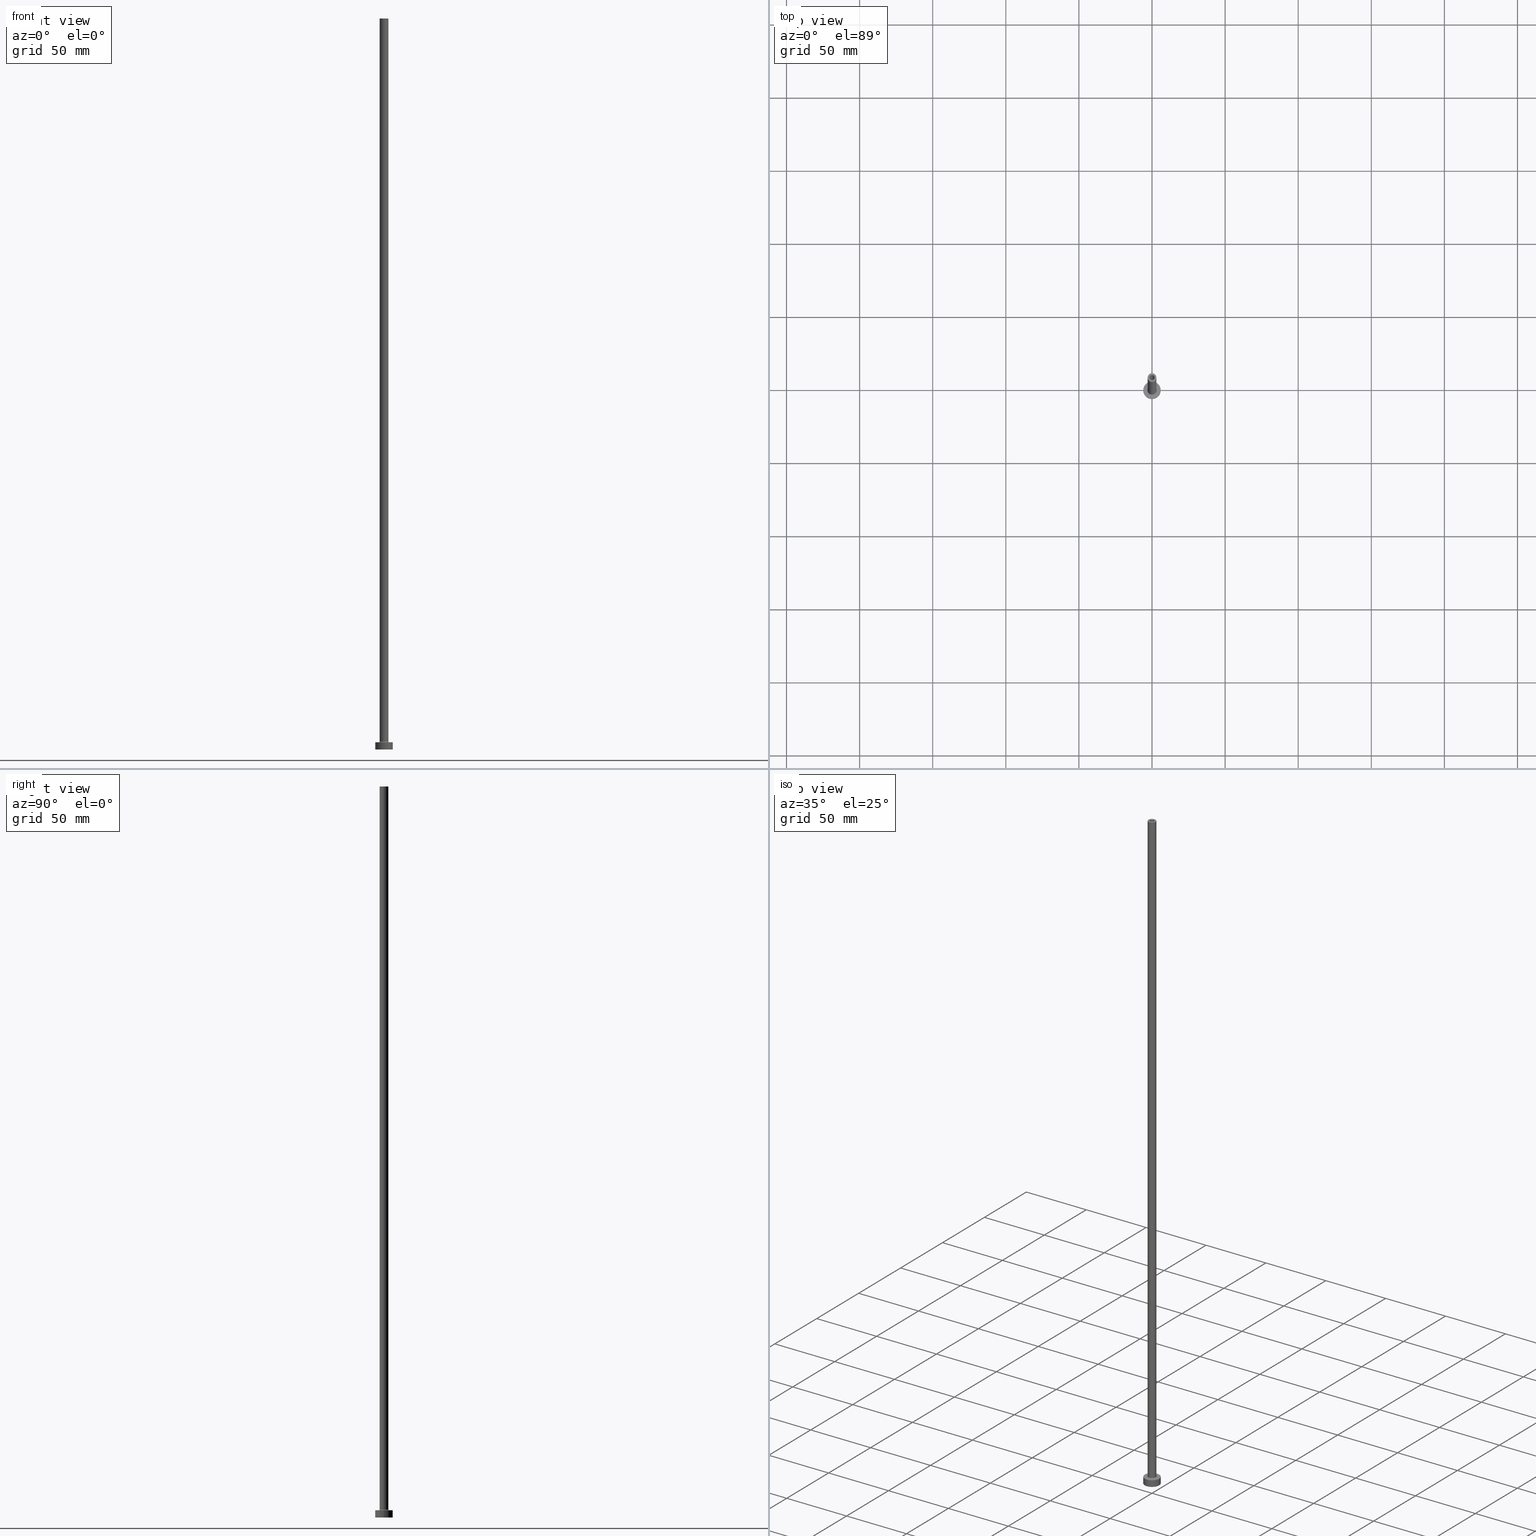
[diagram: canonical four-view strip — front | top / right | iso, engineering-drawing reading convention]
A machine part, canonical four-view strip (front | top / right | iso — engineering-drawing reading convention). The complete STEP part file that produces these views, byte-faithful:
ISO-10303-21;
HEADER;
FILE_DESCRIPTION (( 'STEP AP203' ),
    '1' );
FILE_NAME ('1b10.STEP',
    '2023-02-13T17:49:00',
    ( '' ),
    ( '' ),
    'SwSTEP 2.0',
    'SolidWorks 2019',
    '' );
FILE_SCHEMA (( 'CONFIG_CONTROL_DESIGN' ));
ENDSEC;

DATA;
#1 = PRODUCT_RELATED_PRODUCT_CATEGORY ( 'detail', '', ( #79 ) ) ;
#2 = AXIS2_PLACEMENT_3D ( 'NONE', #311, #175, #61 ) ;
#3 = CC_DESIGN_APPROVAL ( #405, ( #194 ) ) ;
#4 = APPROVAL_DATE_TIME ( #215, #405 ) ;
#5 = DIRECTION ( 'NONE',  ( -0.000000000000000000, -0.000000000000000000, -1.000000000000000000 ) ) ;
#6 = FACE_OUTER_BOUND ( 'NONE', #418, .T. ) ;
#7 = APPROVAL_STATUS ( 'not_yet_approved' ) ;
#8 = ORIENTED_EDGE ( 'NONE', *, *, #354, .T. ) ;
#9 = ADVANCED_FACE ( 'NONE', ( #143 ), #281, .F. ) ;
#10 = FACE_OUTER_BOUND ( 'NONE', #267, .T. ) ;
#11 = AXIS2_PLACEMENT_3D ( 'NONE', #453, #322, #106 ) ;
#12 = CARTESIAN_POINT ( 'NONE',  ( 0.000000000000000000, 0.000000000000000000, 455.0000000000000000 ) ) ;
#13 = EDGE_LOOP ( 'NONE', ( #113, #442, #201, #77 ) ) ;
#14 = EDGE_CURVE ( 'NONE', #119, #371, #182, .T. ) ;
#15 = ORIENTED_EDGE ( 'NONE', *, *, #224, .T. ) ;
#16 = VERTEX_POINT ( 'NONE', #135 ) ;
#17 = DIRECTION ( 'NONE',  ( 1.224646799147353207E-16, 1.000000000000000000, -0.000000000000000000 ) ) ;
#18 = SHAPE_DEFINITION_REPRESENTATION ( #289, #438 ) ;
#19 = CARTESIAN_POINT ( 'NONE',  ( 0.000000000000000000, 0.000000000000000000, 5.000000000000000000 ) ) ;
#20 =( NAMED_UNIT ( * ) SI_UNIT ( $, .STERADIAN. ) SOLID_ANGLE_UNIT ( ) );
#21 = AXIS2_PLACEMENT_3D ( 'NONE', #252, #447, #449 ) ;
#22 = AXIS2_PLACEMENT_3D ( 'NONE', #385, #41, #297 ) ;
#23 = DIRECTION ( 'NONE',  ( 0.000000000000000000, 0.000000000000000000, 1.000000000000000000 ) ) ;
#24 = CARTESIAN_POINT ( 'NONE',  ( -6.000000000000000888, 0.000000000000000000, 5.000000000000000000 ) ) ;
#25 = DIRECTION ( 'NONE',  ( -0.000000000000000000, -0.000000000000000000, -1.000000000000000000 ) ) ;
#26 = EDGE_CURVE ( 'NONE', #345, #16, #381, .T. ) ;
#27 = AXIS2_PLACEMENT_3D ( 'NONE', #12, #295, #161 ) ;
#28 = CC_DESIGN_SECURITY_CLASSIFICATION ( #403, ( #316 ) ) ;
#29 = ORIENTED_EDGE ( 'NONE', *, *, #179, .T. ) ;
#30 = CYLINDRICAL_SURFACE ( 'NONE', #81, 1.899999999999999911 ) ;
#31 = PERSON_AND_ORGANIZATION ( #237, #278 ) ;
#32 = ORIENTED_EDGE ( 'NONE', *, *, #253, .T. ) ;
#33 = FACE_BOUND ( 'NONE', #88, .T. ) ;
#34 = PERSON_AND_ORGANIZATION_ROLE ( 'creator' ) ;
#35 = DIRECTION ( 'NONE',  ( 1.000000000000000000, 0.000000000000000000, -0.000000000000000000 ) ) ;
#36 = DIRECTION ( 'NONE',  ( 0.000000000000000000, 0.000000000000000000, 1.000000000000000000 ) ) ;
#37 = UNCERTAINTY_MEASURE_WITH_UNIT (LENGTH_MEASURE( 1.000000000000000082E-05 ), #98, 'distance_accuracy_value', 'NONE');
#38 = CIRCLE ( 'NONE', #273, 1.899999999999999911 ) ;
#39 = FACE_BOUND ( 'NONE', #225, .T. ) ;
#40 = APPROVAL_DATE_TIME ( #156, #123 ) ;
#41 = DIRECTION ( 'NONE',  ( 0.000000000000000000, 0.000000000000000000, -1.000000000000000000 ) ) ;
#42 = DIRECTION ( 'NONE',  ( 0.000000000000000000, 0.000000000000000000, 1.000000000000000000 ) ) ;
#43 = PERSON_AND_ORGANIZATION_ROLE ( 'creator' ) ;
#44 = AXIS2_PLACEMENT_3D ( 'NONE', #220, #42, #337 ) ;
#45 = VERTEX_POINT ( 'NONE', #146 ) ;
#46 = ORIENTED_EDGE ( 'NONE', *, *, #409, .T. ) ;
#47 = CARTESIAN_POINT ( 'NONE',  ( -1.899999999999999911, 0.000000000000000000, 0.000000000000000000 ) ) ;
#48 = CC_DESIGN_DATE_AND_TIME_ASSIGNMENT ( #249, #399, ( #194 ) ) ;
#49 = ORIENTED_EDGE ( 'NONE', *, *, #162, .F. ) ;
#50 = CARTESIAN_POINT ( 'NONE',  ( 0.000000000000000000, 0.000000000000000000, 500.0000000000000000 ) ) ;
#51 = ORIENTED_EDGE ( 'NONE', *, *, #212, .T. ) ;
#52 = CIRCLE ( 'NONE', #44, 3.000000000000000444 ) ;
#53 = EDGE_LOOP ( 'NONE', ( #166, #374, #245, #183 ) ) ;
#54 = CARTESIAN_POINT ( 'NONE',  ( -1.750000000000000000, 0.000000000000000000, 500.0000000000000000 ) ) ;
#55 = DIRECTION ( 'NONE',  ( 0.000000000000000000, 0.000000000000000000, 1.000000000000000000 ) ) ;
#56 = ADVANCED_FACE ( 'NONE', ( #269 ), #287, .T. ) ;
#57 = LINE ( 'NONE', #264, #223 ) ;
#58 = DATE_AND_TIME ( #376, #73 ) ;
#59 = CARTESIAN_POINT ( 'NONE',  ( 1.750000000000000000, 2.143131898507867804E-16, 500.0000000000000000 ) ) ;
#60 = ORIENTED_EDGE ( 'NONE', *, *, #117, .F. ) ;
#61 = DIRECTION ( 'NONE',  ( 1.000000000000000000, 0.000000000000000000, 0.000000000000000000 ) ) ;
#62 = APPROVAL_DATE_TIME ( #58, #283 ) ;
#63 = AXIS2_PLACEMENT_3D ( 'NONE', #392, #36, #326 ) ;
#64 = DIRECTION ( 'NONE',  ( 1.000000000000000000, 0.000000000000000000, 0.000000000000000000 ) ) ;
#65 = ADVANCED_FACE ( 'NONE', ( #87, #221 ), #363, .F. ) ;
#66 = DIRECTION ( 'NONE',  ( 1.000000000000000000, 0.000000000000000000, 0.000000000000000000 ) ) ;
#67 = ORIENTED_EDGE ( 'NONE', *, *, #158, .F. ) ;
#68 = FACE_OUTER_BOUND ( 'NONE', #292, .T. ) ;
#69 = DIRECTION ( 'NONE',  ( 0.000000000000000000, 0.000000000000000000, -1.000000000000000000 ) ) ;
#70 = CARTESIAN_POINT ( 'NONE',  ( 0.000000000000000000, 0.000000000000000000, 500.0000000000000000 ) ) ;
#71 = VECTOR ( 'NONE', #5, 1000.000000000000000 ) ;
#72 = CYLINDRICAL_SURFACE ( 'NONE', #436, 6.000000000000000888 ) ;
#73 = LOCAL_TIME ( 18, 49, 0.000000000000000000, #236 ) ;
#74 = ADVANCED_FACE ( 'NONE', ( #33, #6 ), #426, .F. ) ;
#75 = ORIENTED_EDGE ( 'NONE', *, *, #26, .F. ) ;
#76 = PERSON_AND_ORGANIZATION ( #237, #278 ) ;
#77 = ORIENTED_EDGE ( 'NONE', *, *, #130, .F. ) ;
#78 = ORIENTED_EDGE ( 'NONE', *, *, #14, .F. ) ;
#79 = PRODUCT ( '1b10', '1b10', '', ( #412 ) ) ;
#80 = DIRECTION ( 'NONE',  ( 0.000000000000000000, 0.000000000000000000, -1.000000000000000000 ) ) ;
#81 = AXIS2_PLACEMENT_3D ( 'NONE', #461, #80, #397 ) ;
#82 = DIRECTION ( 'NONE',  ( 1.000000000000000000, 0.000000000000000000, 0.000000000000000000 ) ) ;
#83 = MANIFOLD_SOLID_BREP ( 'Odebrat vysunut�m4', #444 ) ;
#84 = ORIENTED_EDGE ( 'NONE', *, *, #231, .F. ) ;
#85 = APPLICATION_PROTOCOL_DEFINITION ( 'international standard', 'config_control_design', 1994, #439 ) ;
#86 = ADVANCED_FACE ( 'NONE', ( #10 ), #321, .F. ) ;
#87 = FACE_BOUND ( 'NONE', #312, .T. ) ;
#88 = EDGE_LOOP ( 'NONE', ( #8, #51 ) ) ;
#89 = AXIS2_PLACEMENT_3D ( 'NONE', #227, #370, #202 ) ;
#90 = AXIS2_PLACEMENT_3D ( 'NONE', #340, #230, #132 ) ;
#91 = ORIENTED_EDGE ( 'NONE', *, *, #169, .T. ) ;
#92 = ORIENTED_EDGE ( 'NONE', *, *, #259, .F. ) ;
#93 = EDGE_CURVE ( 'NONE', #371, #193, #139, .T. ) ;
#94 = ORIENTED_EDGE ( 'NONE', *, *, #93, .F. ) ;
#95 = CARTESIAN_POINT ( 'NONE',  ( -1.750000000000000000, 0.000000000000000000, 455.0000000000000000 ) ) ;
#96 = CARTESIAN_POINT ( 'NONE',  ( 0.000000000000000000, 0.000000000000000000, 500.0000000000000000 ) ) ;
#97 = AXIS2_PLACEMENT_3D ( 'NONE', #261, #404, #275 ) ;
#98 =( LENGTH_UNIT ( ) NAMED_UNIT ( * ) SI_UNIT ( .MILLI., .METRE. ) );
#99 = CARTESIAN_POINT ( 'NONE',  ( 0.000000000000000000, 0.000000000000000000, 455.0000000000000000 ) ) ;
#100 = FACE_OUTER_BOUND ( 'NONE', #369, .T. ) ;
#101 = VERTEX_POINT ( 'NONE', #435 ) ;
#102 = CIRCLE ( 'NONE', #359, 1.750000000000000000 ) ;
#103 = ORIENTED_EDGE ( 'NONE', *, *, #336, .F. ) ;
#104 = VERTEX_POINT ( 'NONE', #124 ) ;
#105 = CC_DESIGN_PERSON_AND_ORGANIZATION_ASSIGNMENT ( #112, #43, ( #194 ) ) ;
#106 = DIRECTION ( 'NONE',  ( 1.000000000000000000, 0.000000000000000000, 0.000000000000000000 ) ) ;
#107 = PERSON_AND_ORGANIZATION_ROLE ( 'design_owner' ) ;
#108 = ORIENTED_EDGE ( 'NONE', *, *, #130, .T. ) ;
#109 = CARTESIAN_POINT ( 'NONE',  ( -1.899999999999999911, 0.000000000000000000, 455.0000000000000000 ) ) ;
#110 = APPROVAL_PERSON_ORGANIZATION ( #145, #405, #282 ) ;
#111 = ORIENTED_EDGE ( 'NONE', *, *, #253, .F. ) ;
#112 = PERSON_AND_ORGANIZATION ( #237, #278 ) ;
#113 = ORIENTED_EDGE ( 'NONE', *, *, #162, .T. ) ;
#114 = FACE_OUTER_BOUND ( 'NONE', #452, .T. ) ;
#115 = CARTESIAN_POINT ( 'NONE',  ( 0.000000000000000000, 0.000000000000000000, 500.0000000000000000 ) ) ;
#116 = DIRECTION ( 'NONE',  ( 1.000000000000000000, 0.000000000000000000, -0.000000000000000000 ) ) ;
#117 = EDGE_CURVE ( 'NONE', #101, #343, #342, .T. ) ;
#118 = SECURITY_CLASSIFICATION_LEVEL ( 'unclassified' ) ;
#119 = VERTEX_POINT ( 'NONE', #414 ) ;
#120 = VECTOR ( 'NONE', #25, 1000.000000000000000 ) ;
#121 = VERTEX_POINT ( 'NONE', #95 ) ;
#122 = LINE ( 'NONE', #262, #372 ) ;
#123 = APPROVAL ( #7, 'NEUR�EN�' ) ;
#124 = CARTESIAN_POINT ( 'NONE',  ( -3.000000000000000444, 0.000000000000000000, 5.500000000000005329 ) ) ;
#125 = AXIS2_PLACEMENT_3D ( 'NONE', #387, #69, #208 ) ;
#126 = CC_DESIGN_APPROVAL ( #283, ( #403 ) ) ;
#127 = DIRECTION ( 'NONE',  ( -0.000000000000000000, -0.000000000000000000, -1.000000000000000000 ) ) ;
#128 = EDGE_LOOP ( 'NONE', ( #246, #94 ) ) ;
#129 = EDGE_LOOP ( 'NONE', ( #15, #46 ) ) ;
#130 = EDGE_CURVE ( 'NONE', #140, #121, #309, .T. ) ;
#131 = AXIS2_PLACEMENT_3D ( 'NONE', #247, #456, #191 ) ;
#132 = DIRECTION ( 'NONE',  ( -1.000000000000000000, 0.000000000000000000, 0.000000000000000000 ) ) ;
#133 = DIRECTION ( 'NONE',  ( 1.000000000000000000, 0.000000000000000000, 0.000000000000000000 ) ) ;
#134 = CARTESIAN_POINT ( 'NONE',  ( 0.000000000000000000, 0.000000000000000000, 0.000000000000000000 ) ) ;
#135 = CARTESIAN_POINT ( 'NONE',  ( 1.750000000000000000, 2.143131898507867804E-16, 455.0000000000000000 ) ) ;
#136 = CARTESIAN_POINT ( 'NONE',  ( 0.000000000000000000, 0.000000000000000000, 455.0000000000000000 ) ) ;
#137 = DIRECTION ( 'NONE',  ( 1.000000000000000000, 0.000000000000000000, 0.000000000000000000 ) ) ;
#138 = TOROIDAL_SURFACE ( 'NONE', #63, 3.500000000000000444, 0.5000000000000000000 ) ;
#139 = CIRCLE ( 'NONE', #203, 6.000000000000000888 ) ;
#140 = VERTEX_POINT ( 'NONE', #54 ) ;
#141 = EDGE_CURVE ( 'NONE', #45, #425, #258, .T. ) ;
#142 = CARTESIAN_POINT ( 'NONE',  ( 0.000000000000000000, 0.000000000000000000, 0.000000000000000000 ) ) ;
#143 = FACE_OUTER_BOUND ( 'NONE', #437, .T. ) ;
#144 = DIRECTION ( 'NONE',  ( 0.000000000000000000, 0.000000000000000000, 1.000000000000000000 ) ) ;
#145 = PERSON_AND_ORGANIZATION ( #237, #278 ) ;
#146 = CARTESIAN_POINT ( 'NONE',  ( 1.899999999999999911, 2.326828918379971365E-16, 0.000000000000000000 ) ) ;
#147 = DIRECTION ( 'NONE',  ( 0.000000000000000000, 0.000000000000000000, 1.000000000000000000 ) ) ;
#148 = VERTEX_POINT ( 'NONE', #24 ) ;
#149 = APPROVAL_STATUS ( 'not_yet_approved' ) ;
#150 = CIRCLE ( 'NONE', #341, 1.750000000000000000 ) ;
#151 = EDGE_CURVE ( 'NONE', #163, #324, #353, .T. ) ;
#152 = DESIGN_CONTEXT ( 'detailed design', #439, 'design' ) ;
#153 = CALENDAR_DATE ( 2023, 13, 2 ) ;
#154 = EDGE_CURVE ( 'NONE', #378, #395, #327, .T. ) ;
#155 = DIRECTION ( 'NONE',  ( -0.000000000000000000, -0.000000000000000000, -1.000000000000000000 ) ) ;
#156 = DATE_AND_TIME ( #355, #218 ) ;
#157 = ORIENTED_EDGE ( 'NONE', *, *, #154, .F. ) ;
#158 = EDGE_CURVE ( 'NONE', #395, #378, #411, .T. ) ;
#159 = AXIS2_PLACEMENT_3D ( 'NONE', #19, #170, #133 ) ;
#160 = EDGE_LOOP ( 'NONE', ( #263, #331, #299, #92 ) ) ;
#161 = DIRECTION ( 'NONE',  ( 1.000000000000000000, 0.000000000000000000, 0.000000000000000000 ) ) ;
#162 = EDGE_CURVE ( 'NONE', #140, #345, #150, .T. ) ;
#163 = VERTEX_POINT ( 'NONE', #346 ) ;
#164 = CIRCLE ( 'NONE', #27, 1.750000000000000000 ) ;
#165 = EDGE_LOOP ( 'NONE', ( #459, #60, #206, #232 ) ) ;
#166 = ORIENTED_EDGE ( 'NONE', *, *, #207, .F. ) ;
#167 = ORIENTED_EDGE ( 'NONE', *, *, #117, .T. ) ;
#168 = CALENDAR_DATE ( 2023, 13, 2 ) ;
#169 = EDGE_CURVE ( 'NONE', #193, #371, #406, .T. ) ;
#170 = DIRECTION ( 'NONE',  ( -0.000000000000000000, -0.000000000000000000, -1.000000000000000000 ) ) ;
#171 = CARTESIAN_POINT ( 'NONE',  ( -3.000000000000000444, 0.000000000000000000, 500.0000000000000000 ) ) ;
#172 = CIRCLE ( 'NONE', #244, 3.000000000000000444 ) ;
#173 = LOCAL_TIME ( 18, 49, 0.000000000000000000, #279 ) ;
#174 = ADVANCED_FACE ( 'NONE', ( #100 ), #265, .F. ) ;
#175 = DIRECTION ( 'NONE',  ( -0.000000000000000000, -0.000000000000000000, -1.000000000000000000 ) ) ;
#176 = DIRECTION ( 'NONE',  ( 1.000000000000000000, 0.000000000000000000, 0.000000000000000000 ) ) ;
#177 = CARTESIAN_POINT ( 'NONE',  ( 0.000000000000000000, 0.000000000000000000, 455.0000000000000000 ) ) ;
#178 = FACE_BOUND ( 'NONE', #454, .T. ) ;
#179 = EDGE_CURVE ( 'NONE', #427, #104, #440, .T. ) ;
#180 = AXIS2_PLACEMENT_3D ( 'NONE', #254, #155, #432 ) ;
#181 = DIRECTION ( 'NONE',  ( 1.000000000000000000, 0.000000000000000000, 0.000000000000000000 ) ) ;
#182 = LINE ( 'NONE', #205, #366 ) ;
#183 = ORIENTED_EDGE ( 'NONE', *, *, #228, .F. ) ;
#184 = CARTESIAN_POINT ( 'NONE',  ( 0.000000000000000000, 0.000000000000000000, 0.000000000000000000 ) ) ;
#185 = CARTESIAN_POINT ( 'NONE',  ( 1.899999999999999911, 2.326828918379971365E-16, 460.3740115370177932 ) ) ;
#186 = PERSON_AND_ORGANIZATION ( #237, #278 ) ;
#187 = CYLINDRICAL_SURFACE ( 'NONE', #367, 3.000000000000000444 ) ;
#188 = DIRECTION ( 'NONE',  ( -0.000000000000000000, -0.000000000000000000, -1.000000000000000000 ) ) ;
#189 = CIRCLE ( 'NONE', #131, 0.5000000000000004441 ) ;
#190 = ADVANCED_FACE ( 'NONE', ( #310 ), #138, .F. ) ;
#191 = DIRECTION ( 'NONE',  ( 0.000000000000000000, 0.000000000000000000, -1.000000000000000000 ) ) ;
#192 = FACE_OUTER_BOUND ( 'NONE', #129, .T. ) ;
#193 = VERTEX_POINT ( 'NONE', #214 ) ;
#194 = PRODUCT_DEFINITION ( 'NEZN�M�', '', #316, #152 ) ;
#195 = CIRCLE ( 'NONE', #180, 3.500000000000000444 ) ;
#196 = DIRECTION ( 'NONE',  ( 1.000000000000000000, 0.000000000000000000, 0.000000000000000000 ) ) ;
#197 = ORIENTED_EDGE ( 'NONE', *, *, #228, .T. ) ;
#198 = CARTESIAN_POINT ( 'NONE',  ( 3.000000000000000444, 3.673940397442060361E-16, 5.500000000000005329 ) ) ;
#199 = ADVANCED_FACE ( 'NONE', ( #39, #192 ), #333, .T. ) ;
#200 = ORIENTED_EDGE ( 'NONE', *, *, #179, .F. ) ;
#201 = ORIENTED_EDGE ( 'NONE', *, *, #354, .F. ) ;
#202 = DIRECTION ( 'NONE',  ( 1.000000000000000000, 0.000000000000000000, 0.000000000000000000 ) ) ;
#203 = AXIS2_PLACEMENT_3D ( 'NONE', #184, #455, #196 ) ;
#204 = AXIS2_PLACEMENT_3D ( 'NONE', #134, #383, #181 ) ;
#205 = CARTESIAN_POINT ( 'NONE',  ( 6.000000000000000888, 7.347880794884120722E-16, 5.000000000000000000 ) ) ;
#206 = ORIENTED_EDGE ( 'NONE', *, *, #349, .T. ) ;
#207 = EDGE_CURVE ( 'NONE', #104, #427, #52, .T. ) ;
#208 = DIRECTION ( 'NONE',  ( -1.000000000000000000, 0.000000000000000000, 0.000000000000000000 ) ) ;
#209 = AXIS2_PLACEMENT_3D ( 'NONE', #314, #144, #66 ) ;
#210 = CARTESIAN_POINT ( 'NONE',  ( 0.000000000000000000, 0.000000000000000000, 5.000000000000000000 ) ) ;
#211 = DIRECTION ( 'NONE',  ( 1.000000000000000000, 0.000000000000000000, 0.000000000000000000 ) ) ;
#212 = EDGE_CURVE ( 'NONE', #16, #121, #164, .T. ) ;
#213 = LINE ( 'NONE', #185, #298 ) ;
#214 = CARTESIAN_POINT ( 'NONE',  ( -6.000000000000000888, 0.000000000000000000, 0.000000000000000000 ) ) ;
#215 = DATE_AND_TIME ( #334, #368 ) ;
#216 = CIRCLE ( 'NONE', #11, 6.000000000000000888 ) ;
#217 = CYLINDRICAL_SURFACE ( 'NONE', #22, 1.750000000000000000 ) ;
#218 = LOCAL_TIME ( 18, 49, 0.000000000000000000, #389 ) ;
#219 = DIRECTION ( 'NONE',  ( 1.000000000000000000, 0.000000000000000000, 0.000000000000000000 ) ) ;
#220 = CARTESIAN_POINT ( 'NONE',  ( 0.000000000000000000, 0.000000000000000000, 5.500000000000005329 ) ) ;
#221 = FACE_OUTER_BOUND ( 'NONE', #128, .T. ) ;
#222 = EDGE_CURVE ( 'NONE', #395, #425, #122, .T. ) ;
#223 = VECTOR ( 'NONE', #127, 1000.000000000000000 ) ;
#224 = EDGE_CURVE ( 'NONE', #148, #119, #216, .T. ) ;
#225 = EDGE_LOOP ( 'NONE', ( #408, #320 ) ) ;
#226 = ORIENTED_EDGE ( 'NONE', *, *, #154, .T. ) ;
#227 = CARTESIAN_POINT ( 'NONE',  ( 0.000000000000000000, 0.000000000000000000, 5.000000000000000000 ) ) ;
#228 = EDGE_CURVE ( 'NONE', #427, #324, #189, .T. ) ;
#229 = DIRECTION ( 'NONE',  ( 0.000000000000000000, 0.000000000000000000, 1.000000000000000000 ) ) ;
#230 = DIRECTION ( 'NONE',  ( -0.000000000000000000, -0.000000000000000000, -1.000000000000000000 ) ) ;
#231 = EDGE_CURVE ( 'NONE', #343, #101, #172, .T. ) ;
#232 = ORIENTED_EDGE ( 'NONE', *, *, #207, .T. ) ;
#233 = AXIS2_PLACEMENT_3D ( 'NONE', #99, #276, #347 ) ;
#234 = AXIS2_PLACEMENT_3D ( 'NONE', #270, #17, #235 ) ;
#235 = DIRECTION ( 'NONE',  ( -1.000000000000000000, 1.224646799147354440E-16, 0.000000000000000000 ) ) ;
#236 = COORDINATED_UNIVERSAL_TIME_OFFSET ( 1, 0, .AHEAD. ) ;
#237 = PERSON ( 'NEUR�EN�', 'NEUR�EN�', 'NEUR�EN�', ('NEUR�EN�'), ('NEUR�EN�'), ('NEUR�EN�') ) ;
#238 = ORIENTED_EDGE ( 'NONE', *, *, #296, .F. ) ;
#239 = CC_DESIGN_PERSON_AND_ORGANIZATION_ASSIGNMENT ( #31, #291, ( #316 ) ) ;
#240 =( NAMED_UNIT ( * ) PLANE_ANGLE_UNIT ( ) SI_UNIT ( $, .RADIAN. ) );
#241 = ORIENTED_EDGE ( 'NONE', *, *, #151, .F. ) ;
#242 = FACE_OUTER_BOUND ( 'NONE', #302, .T. ) ;
#243 = DIRECTION ( 'NONE',  ( 0.000000000000000000, 0.000000000000000000, 1.000000000000000000 ) ) ;
#244 = AXIS2_PLACEMENT_3D ( 'NONE', #70, #250, #211 ) ;
#245 = ORIENTED_EDGE ( 'NONE', *, *, #303, .F. ) ;
#246 = ORIENTED_EDGE ( 'NONE', *, *, #169, .F. ) ;
#247 = CARTESIAN_POINT ( 'NONE',  ( 3.500000000000000444, 0.000000000000000000, 5.500000000000005329 ) ) ;
#248 = ORIENTED_EDGE ( 'NONE', *, *, #212, .F. ) ;
#249 = DATE_AND_TIME ( #153, #260 ) ;
#250 = DIRECTION ( 'NONE',  ( 0.000000000000000000, 0.000000000000000000, 1.000000000000000000 ) ) ;
#251 = AXIS2_PLACEMENT_3D ( 'NONE', #290, #434, #116 ) ;
#252 = CARTESIAN_POINT ( 'NONE',  ( 0.000000000000000000, 0.000000000000000000, 460.3740115370177932 ) ) ;
#253 = EDGE_CURVE ( 'NONE', #425, #45, #38, .T. ) ;
#254 = CARTESIAN_POINT ( 'NONE',  ( 0.000000000000000000, 0.000000000000000000, 5.000000000000000000 ) ) ;
#255 = CARTESIAN_POINT ( 'NONE',  ( 0.000000000000000000, 0.000000000000000000, 500.0000000000000000 ) ) ;
#256 = DIRECTION ( 'NONE',  ( 0.000000000000000000, 0.000000000000000000, 1.000000000000000000 ) ) ;
#257 = DIRECTION ( 'NONE',  ( 0.000000000000000000, 0.000000000000000000, 1.000000000000000000 ) ) ;
#258 = CIRCLE ( 'NONE', #2, 1.899999999999999911 ) ;
#259 = EDGE_CURVE ( 'NONE', #148, #193, #325, .T. ) ;
#260 = LOCAL_TIME ( 18, 49, 0.000000000000000000, #393 ) ;
#261 = CARTESIAN_POINT ( 'NONE',  ( 0.000000000000000000, 0.000000000000000000, 500.0000000000000000 ) ) ;
#262 = CARTESIAN_POINT ( 'NONE',  ( -1.899999999999999911, 0.000000000000000000, 460.3740115370177932 ) ) ;
#263 = ORIENTED_EDGE ( 'NONE', *, *, #409, .F. ) ;
#264 = CARTESIAN_POINT ( 'NONE',  ( 3.000000000000000444, 3.673940397442060361E-16, 500.0000000000000000 ) ) ;
#265 = TOROIDAL_SURFACE ( 'NONE', #209, 3.500000000000000444, 0.5000000000000000000 ) ;
#266 = CC_DESIGN_DATE_AND_TIME_ASSIGNMENT ( #308, #443, ( #403 ) ) ;
#267 = EDGE_LOOP ( 'NONE', ( #75, #352, #108, #248 ) ) ;
#268 = ORIENTED_EDGE ( 'NONE', *, *, #224, .F. ) ;
#269 = FACE_OUTER_BOUND ( 'NONE', #165, .T. ) ;
#270 = CARTESIAN_POINT ( 'NONE',  ( -3.500000000000000444, 4.286263797015737088E-16, 5.500000000000005329 ) ) ;
#271 = PERSON_AND_ORGANIZATION ( #237, #278 ) ;
#272 = CC_DESIGN_PERSON_AND_ORGANIZATION_ASSIGNMENT ( #430, #107, ( #79 ) ) ;
#273 = AXIS2_PLACEMENT_3D ( 'NONE', #361, #188, #82 ) ;
#274 =( GEOMETRIC_REPRESENTATION_CONTEXT ( 3 ) GLOBAL_UNCERTAINTY_ASSIGNED_CONTEXT ( ( #37 ) ) GLOBAL_UNIT_ASSIGNED_CONTEXT ( ( #98, #240, #20 ) ) REPRESENTATION_CONTEXT ( 'NONE', 'WORKASPACE' ) );
#275 = DIRECTION ( 'NONE',  ( 1.000000000000000000, 0.000000000000000000, 0.000000000000000000 ) ) ;
#276 = DIRECTION ( 'NONE',  ( 0.000000000000000000, 0.000000000000000000, 1.000000000000000000 ) ) ;
#277 = AXIS2_PLACEMENT_3D ( 'NONE', #433, #257, #362 ) ;
#278 = ORGANIZATION ( 'NEUR�EN�', 'NEUR�EN�', '' ) ;
#279 = COORDINATED_UNIVERSAL_TIME_OFFSET ( 1, 0, .AHEAD. ) ;
#280 = PLANE ( 'NONE',  #307 ) ;
#281 = CYLINDRICAL_SURFACE ( 'NONE', #21, 1.899999999999999911 ) ;
#282 = APPROVAL_ROLE ( '' ) ;
#283 = APPROVAL ( #410, 'NEUR�EN�' ) ;
#284 = VECTOR ( 'NONE', #458, 1000.000000000000000 ) ;
#285 = APPLICATION_CONTEXT ( 'configuration controlled 3d designs of mechanical parts and assemblies' ) ;
#286 = CIRCLE ( 'NONE', #89, 6.000000000000000888 ) ;
#287 = CYLINDRICAL_SURFACE ( 'NONE', #380, 3.000000000000000444 ) ;
#288 = CARTESIAN_POINT ( 'NONE',  ( 6.000000000000000888, 7.347880794884120722E-16, 0.000000000000000000 ) ) ;
#289 = PRODUCT_DEFINITION_SHAPE ( 'NONE', 'NONE',  #194 ) ;
#290 = CARTESIAN_POINT ( 'NONE',  ( 0.000000000000000000, 0.000000000000000000, 5.000000000000000000 ) ) ;
#291 = PERSON_AND_ORGANIZATION_ROLE ( 'design_supplier' ) ;
#292 = EDGE_LOOP ( 'NONE', ( #84, #388, #29, #441 ) ) ;
#293 = ADVANCED_FACE ( 'NONE', ( #114 ), #30, .F. ) ;
#294 = AXIS2_PLACEMENT_3D ( 'NONE', #416, #23, #35 ) ;
#295 = DIRECTION ( 'NONE',  ( 0.000000000000000000, 0.000000000000000000, 1.000000000000000000 ) ) ;
#296 = EDGE_CURVE ( 'NONE', #378, #45, #213, .T. ) ;
#297 = DIRECTION ( 'NONE',  ( -1.000000000000000000, 0.000000000000000000, 0.000000000000000000 ) ) ;
#298 = VECTOR ( 'NONE', #420, 1000.000000000000000 ) ;
#299 = ORIENTED_EDGE ( 'NONE', *, *, #93, .T. ) ;
#300 = CYLINDRICAL_SURFACE ( 'NONE', #90, 6.000000000000000888 ) ;
#301 = EDGE_LOOP ( 'NONE', ( #78, #268, #415, #91 ) ) ;
#302 = EDGE_LOOP ( 'NONE', ( #167, #386 ) ) ;
#303 = EDGE_CURVE ( 'NONE', #324, #163, #195, .T. ) ;
#304 = ORIENTED_EDGE ( 'NONE', *, *, #222, .T. ) ;
#305 = FACE_OUTER_BOUND ( 'NONE', #160, .T. ) ;
#306 = ORIENTED_EDGE ( 'NONE', *, *, #141, .F. ) ;
#307 = AXIS2_PLACEMENT_3D ( 'NONE', #96, #55, #390 ) ;
#308 = DATE_AND_TIME ( #168, #173 ) ;
#309 = LINE ( 'NONE', #344, #402 ) ;
#310 = FACE_OUTER_BOUND ( 'NONE', #53, .T. ) ;
#311 = CARTESIAN_POINT ( 'NONE',  ( 0.000000000000000000, 0.000000000000000000, 0.000000000000000000 ) ) ;
#312 = EDGE_LOOP ( 'NONE', ( #111, #306 ) ) ;
#313 = PERSON_AND_ORGANIZATION_ROLE ( 'classification_officer' ) ;
#314 = CARTESIAN_POINT ( 'NONE',  ( 0.000000000000000000, 0.000000000000000000, 5.500000000000005329 ) ) ;
#315 = CIRCLE ( 'NONE', #338, 1.750000000000000000 ) ;
#316 = PRODUCT_DEFINITION_FORMATION_WITH_SPECIFIED_SOURCE ( 'LIBOVOLN�', '', #79, .NOT_KNOWN. ) ;
#317 = ORIENTED_EDGE ( 'NONE', *, *, #141, .T. ) ;
#318 = CC_DESIGN_PERSON_AND_ORGANIZATION_ASSIGNMENT ( #356, #34, ( #316 ) ) ;
#319 = CARTESIAN_POINT ( 'NONE',  ( 1.750000000000000000, 2.143131898507867804E-16, 500.0000000000000000 ) ) ;
#320 = ORIENTED_EDGE ( 'NONE', *, *, #151, .T. ) ;
#321 = CYLINDRICAL_SURFACE ( 'NONE', #125, 1.750000000000000000 ) ;
#322 = DIRECTION ( 'NONE',  ( 0.000000000000000000, 0.000000000000000000, 1.000000000000000000 ) ) ;
#323 = ORIENTED_EDGE ( 'NONE', *, *, #296, .T. ) ;
#324 = VERTEX_POINT ( 'NONE', #401 ) ;
#325 = LINE ( 'NONE', #332, #71 ) ;
#326 = DIRECTION ( 'NONE',  ( 1.000000000000000000, 0.000000000000000000, 0.000000000000000000 ) ) ;
#327 = CIRCLE ( 'NONE', #233, 1.899999999999999911 ) ;
#328 = CC_DESIGN_APPROVAL ( #123, ( #316 ) ) ;
#329 = COORDINATED_UNIVERSAL_TIME_OFFSET ( 1, 0, .AHEAD. ) ;
#330 = FACE_OUTER_BOUND ( 'NONE', #13, .T. ) ;
#331 = ORIENTED_EDGE ( 'NONE', *, *, #14, .T. ) ;
#332 = CARTESIAN_POINT ( 'NONE',  ( -6.000000000000000888, 0.000000000000000000, 5.000000000000000000 ) ) ;
#333 = PLANE ( 'NONE',  #251 ) ;
#334 = CALENDAR_DATE ( 2023, 13, 2 ) ;
#335 = DIRECTION ( 'NONE',  ( -1.000000000000000000, 0.000000000000000000, 0.000000000000000000 ) ) ;
#336 = EDGE_CURVE ( 'NONE', #345, #140, #315, .T. ) ;
#337 = DIRECTION ( 'NONE',  ( 1.000000000000000000, 0.000000000000000000, 0.000000000000000000 ) ) ;
#338 = AXIS2_PLACEMENT_3D ( 'NONE', #115, #256, #219 ) ;
#339 = ORIENTED_EDGE ( 'NONE', *, *, #424, .F. ) ;
#340 = CARTESIAN_POINT ( 'NONE',  ( 0.000000000000000000, 0.000000000000000000, 5.000000000000000000 ) ) ;
#341 = AXIS2_PLACEMENT_3D ( 'NONE', #417, #243, #64 ) ;
#342 = CIRCLE ( 'NONE', #97, 3.000000000000000444 ) ;
#343 = VERTEX_POINT ( 'NONE', #450 ) ;
#344 = CARTESIAN_POINT ( 'NONE',  ( -1.750000000000000000, 0.000000000000000000, 500.0000000000000000 ) ) ;
#345 = VERTEX_POINT ( 'NONE', #59 ) ;
#346 = CARTESIAN_POINT ( 'NONE',  ( -3.500000000000000444, 4.286263797015737088E-16, 5.000000000000002665 ) ) ;
#347 = DIRECTION ( 'NONE',  ( 1.000000000000000000, 0.000000000000000000, 0.000000000000000000 ) ) ;
#348 = CIRCLE ( 'NONE', #234, 0.4999999999999995559 ) ;
#349 = EDGE_CURVE ( 'NONE', #101, #104, #351, .T. ) ;
#350 = DIRECTION ( 'NONE',  ( 1.000000000000000000, 0.000000000000000000, 0.000000000000000000 ) ) ;
#351 = LINE ( 'NONE', #171, #120 ) ;
#352 = ORIENTED_EDGE ( 'NONE', *, *, #336, .T. ) ;
#353 = CIRCLE ( 'NONE', #159, 3.500000000000000444 ) ;
#354 = EDGE_CURVE ( 'NONE', #121, #16, #102, .T. ) ;
#355 = CALENDAR_DATE ( 2023, 13, 2 ) ;
#356 = PERSON_AND_ORGANIZATION ( #237, #278 ) ;
#357 = DIRECTION ( 'NONE',  ( 1.000000000000000000, 0.000000000000000000, 0.000000000000000000 ) ) ;
#358 = DIRECTION ( 'NONE',  ( -1.000000000000000000, 0.000000000000000000, 0.000000000000000000 ) ) ;
#359 = AXIS2_PLACEMENT_3D ( 'NONE', #177, #377, #137 ) ;
#360 = APPROVAL_ROLE ( '' ) ;
#361 = CARTESIAN_POINT ( 'NONE',  ( 0.000000000000000000, 0.000000000000000000, 0.000000000000000000 ) ) ;
#362 = DIRECTION ( 'NONE',  ( 1.000000000000000000, 0.000000000000000000, -0.000000000000000000 ) ) ;
#363 = PLANE ( 'NONE',  #294 ) ;
#364 = ADVANCED_FACE ( 'NONE', ( #178, #242 ), #280, .T. ) ;
#365 = CC_DESIGN_PERSON_AND_ORGANIZATION_ASSIGNMENT ( #186, #313, ( #403 ) ) ;
#366 = VECTOR ( 'NONE', #421, 1000.000000000000000 ) ;
#367 = AXIS2_PLACEMENT_3D ( 'NONE', #255, #460, #358 ) ;
#368 = LOCAL_TIME ( 18, 49, 0.000000000000000000, #329 ) ;
#369 = EDGE_LOOP ( 'NONE', ( #339, #200, #197, #241 ) ) ;
#370 = DIRECTION ( 'NONE',  ( 0.000000000000000000, 0.000000000000000000, 1.000000000000000000 ) ) ;
#371 = VERTEX_POINT ( 'NONE', #288 ) ;
#372 = VECTOR ( 'NONE', #428, 1000.000000000000000 ) ;
#373 = ADVANCED_FACE ( 'NONE', ( #419 ), #72, .T. ) ;
#374 = ORIENTED_EDGE ( 'NONE', *, *, #424, .T. ) ;
#375 = DIRECTION ( 'NONE',  ( 0.000000000000000000, 0.000000000000000000, -1.000000000000000000 ) ) ;
#376 = CALENDAR_DATE ( 2023, 13, 2 ) ;
#377 = DIRECTION ( 'NONE',  ( 0.000000000000000000, 0.000000000000000000, 1.000000000000000000 ) ) ;
#378 = VERTEX_POINT ( 'NONE', #431 ) ;
#379 = APPROVAL_ROLE ( '' ) ;
#380 = AXIS2_PLACEMENT_3D ( 'NONE', #50, #400, #335 ) ;
#381 = LINE ( 'NONE', #319, #284 ) ;
#382 = ORIENTED_EDGE ( 'NONE', *, *, #222, .F. ) ;
#383 = DIRECTION ( 'NONE',  ( 0.000000000000000000, 0.000000000000000000, 1.000000000000000000 ) ) ;
#384 = ADVANCED_FACE ( 'NONE', ( #68 ), #187, .T. ) ;
#385 = CARTESIAN_POINT ( 'NONE',  ( 0.000000000000000000, 0.000000000000000000, 500.0000000000000000 ) ) ;
#386 = ORIENTED_EDGE ( 'NONE', *, *, #231, .T. ) ;
#387 = CARTESIAN_POINT ( 'NONE',  ( 0.000000000000000000, 0.000000000000000000, 500.0000000000000000 ) ) ;
#388 = ORIENTED_EDGE ( 'NONE', *, *, #407, .T. ) ;
#389 = COORDINATED_UNIVERSAL_TIME_OFFSET ( 1, 0, .AHEAD. ) ;
#390 = DIRECTION ( 'NONE',  ( 1.000000000000000000, 0.000000000000000000, -0.000000000000000000 ) ) ;
#391 = AXIS2_PLACEMENT_3D ( 'NONE', #136, #229, #350 ) ;
#392 = CARTESIAN_POINT ( 'NONE',  ( 0.000000000000000000, 0.000000000000000000, 5.500000000000005329 ) ) ;
#393 = COORDINATED_UNIVERSAL_TIME_OFFSET ( 1, 0, .AHEAD. ) ;
#394 = DIRECTION ( 'NONE',  ( -1.000000000000000000, 0.000000000000000000, 0.000000000000000000 ) ) ;
#395 = VERTEX_POINT ( 'NONE', #109 ) ;
#396 = ORIENTED_EDGE ( 'NONE', *, *, #158, .T. ) ;
#397 = DIRECTION ( 'NONE',  ( -1.000000000000000000, 0.000000000000000000, 0.000000000000000000 ) ) ;
#398 = ADVANCED_FACE ( 'NONE', ( #330 ), #217, .F. ) ;
#399 = DATE_TIME_ROLE ( 'creation_date' ) ;
#400 = DIRECTION ( 'NONE',  ( -0.000000000000000000, -0.000000000000000000, -1.000000000000000000 ) ) ;
#401 = CARTESIAN_POINT ( 'NONE',  ( 3.500000000000000444, 0.000000000000000000, 5.000000000000002665 ) ) ;
#402 = VECTOR ( 'NONE', #375, 1000.000000000000000 ) ;
#403 = SECURITY_CLASSIFICATION ( '', '', #118 ) ;
#404 = DIRECTION ( 'NONE',  ( 0.000000000000000000, 0.000000000000000000, 1.000000000000000000 ) ) ;
#405 = APPROVAL ( #149, 'NEUR�EN�' ) ;
#406 = CIRCLE ( 'NONE', #448, 6.000000000000000888 ) ;
#407 = EDGE_CURVE ( 'NONE', #343, #427, #57, .T. ) ;
#408 = ORIENTED_EDGE ( 'NONE', *, *, #303, .T. ) ;
#409 = EDGE_CURVE ( 'NONE', #119, #148, #286, .T. ) ;
#410 = APPROVAL_STATUS ( 'not_yet_approved' ) ;
#411 = CIRCLE ( 'NONE', #391, 1.899999999999999911 ) ;
#412 = MECHANICAL_CONTEXT ( 'NONE', #285, 'mechanical' ) ;
#413 = APPROVAL_PERSON_ORGANIZATION ( #76, #123, #360 ) ;
#414 = CARTESIAN_POINT ( 'NONE',  ( 6.000000000000000888, 7.347880794884120722E-16, 5.000000000000000000 ) ) ;
#415 = ORIENTED_EDGE ( 'NONE', *, *, #259, .T. ) ;
#416 = CARTESIAN_POINT ( 'NONE',  ( 0.000000000000000000, 0.000000000000000000, 0.000000000000000000 ) ) ;
#417 = CARTESIAN_POINT ( 'NONE',  ( 0.000000000000000000, 0.000000000000000000, 500.0000000000000000 ) ) ;
#418 = EDGE_LOOP ( 'NONE', ( #67, #157 ) ) ;
#419 = FACE_OUTER_BOUND ( 'NONE', #301, .T. ) ;
#420 = DIRECTION ( 'NONE',  ( 0.000000000000000000, 0.000000000000000000, -1.000000000000000000 ) ) ;
#421 = DIRECTION ( 'NONE',  ( -0.000000000000000000, -0.000000000000000000, -1.000000000000000000 ) ) ;
#422 = DIRECTION ( 'NONE',  ( 0.000000000000000000, 0.000000000000000000, 1.000000000000000000 ) ) ;
#423 = DIRECTION ( 'NONE',  ( -0.000000000000000000, -0.000000000000000000, -1.000000000000000000 ) ) ;
#424 = EDGE_CURVE ( 'NONE', #104, #163, #348, .T. ) ;
#425 = VERTEX_POINT ( 'NONE', #47 ) ;
#426 = PLANE ( 'NONE',  #277 ) ;
#427 = VERTEX_POINT ( 'NONE', #198 ) ;
#428 = DIRECTION ( 'NONE',  ( 0.000000000000000000, 0.000000000000000000, -1.000000000000000000 ) ) ;
#429 = APPLICATION_PROTOCOL_DEFINITION ( 'international standard', 'config_control_design', 1994, #285 ) ;
#430 = PERSON_AND_ORGANIZATION ( #237, #278 ) ;
#431 = CARTESIAN_POINT ( 'NONE',  ( 1.899999999999999911, 2.326828918379971365E-16, 455.0000000000000000 ) ) ;
#432 = DIRECTION ( 'NONE',  ( 1.000000000000000000, 0.000000000000000000, 0.000000000000000000 ) ) ;
#433 = CARTESIAN_POINT ( 'NONE',  ( 0.000000000000000000, 0.000000000000000000, 455.0000000000000000 ) ) ;
#434 = DIRECTION ( 'NONE',  ( 0.000000000000000000, 0.000000000000000000, 1.000000000000000000 ) ) ;
#435 = CARTESIAN_POINT ( 'NONE',  ( -3.000000000000000444, 0.000000000000000000, 500.0000000000000000 ) ) ;
#436 = AXIS2_PLACEMENT_3D ( 'NONE', #210, #423, #394 ) ;
#437 = EDGE_LOOP ( 'NONE', ( #396, #323, #317, #382 ) ) ;
#438 = ADVANCED_BREP_SHAPE_REPRESENTATION ( '1b10', ( #83, #204 ), #274 ) ;
#439 = APPLICATION_CONTEXT ( 'configuration controlled 3d designs of mechanical parts and assemblies' ) ;
#440 = CIRCLE ( 'NONE', #445, 3.000000000000000444 ) ;
#441 = ORIENTED_EDGE ( 'NONE', *, *, #349, .F. ) ;
#442 = ORIENTED_EDGE ( 'NONE', *, *, #26, .T. ) ;
#443 = DATE_TIME_ROLE ( 'classification_date' ) ;
#444 = CLOSED_SHELL ( 'NONE', ( #398, #9, #190, #384, #446, #373, #199, #65, #56, #364, #174, #293, #74, #86 ) ) ;
#445 = AXIS2_PLACEMENT_3D ( 'NONE', #457, #422, #176 ) ;
#446 = ADVANCED_FACE ( 'NONE', ( #305 ), #300, .T. ) ;
#447 = DIRECTION ( 'NONE',  ( 0.000000000000000000, 0.000000000000000000, -1.000000000000000000 ) ) ;
#448 = AXIS2_PLACEMENT_3D ( 'NONE', #142, #147, #357 ) ;
#449 = DIRECTION ( 'NONE',  ( -1.000000000000000000, 0.000000000000000000, 0.000000000000000000 ) ) ;
#450 = CARTESIAN_POINT ( 'NONE',  ( 3.000000000000000444, 3.673940397442060361E-16, 500.0000000000000000 ) ) ;
#451 = APPROVAL_PERSON_ORGANIZATION ( #271, #283, #379 ) ;
#452 = EDGE_LOOP ( 'NONE', ( #238, #226, #304, #32 ) ) ;
#453 = CARTESIAN_POINT ( 'NONE',  ( 0.000000000000000000, 0.000000000000000000, 5.000000000000000000 ) ) ;
#454 = EDGE_LOOP ( 'NONE', ( #49, #103 ) ) ;
#455 = DIRECTION ( 'NONE',  ( 0.000000000000000000, 0.000000000000000000, 1.000000000000000000 ) ) ;
#456 = DIRECTION ( 'NONE',  ( 0.000000000000000000, -1.000000000000000000, 0.000000000000000000 ) ) ;
#457 = CARTESIAN_POINT ( 'NONE',  ( 0.000000000000000000, 0.000000000000000000, 5.500000000000005329 ) ) ;
#458 = DIRECTION ( 'NONE',  ( 0.000000000000000000, 0.000000000000000000, -1.000000000000000000 ) ) ;
#459 = ORIENTED_EDGE ( 'NONE', *, *, #407, .F. ) ;
#460 = DIRECTION ( 'NONE',  ( -0.000000000000000000, -0.000000000000000000, -1.000000000000000000 ) ) ;
#461 = CARTESIAN_POINT ( 'NONE',  ( 0.000000000000000000, 0.000000000000000000, 460.3740115370177932 ) ) ;
ENDSEC;
END-ISO-10303-21;
